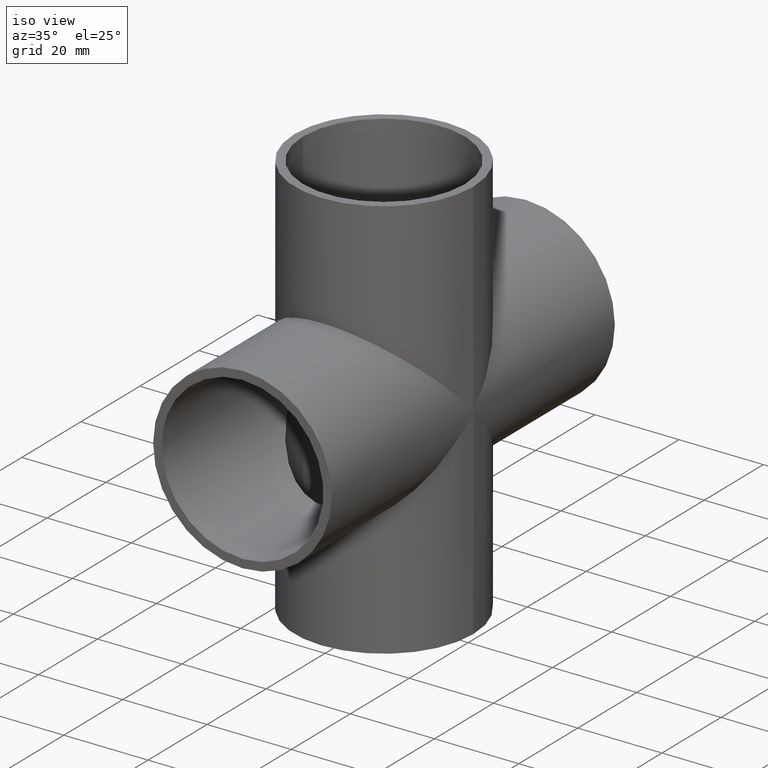
[diagram: clean part render]
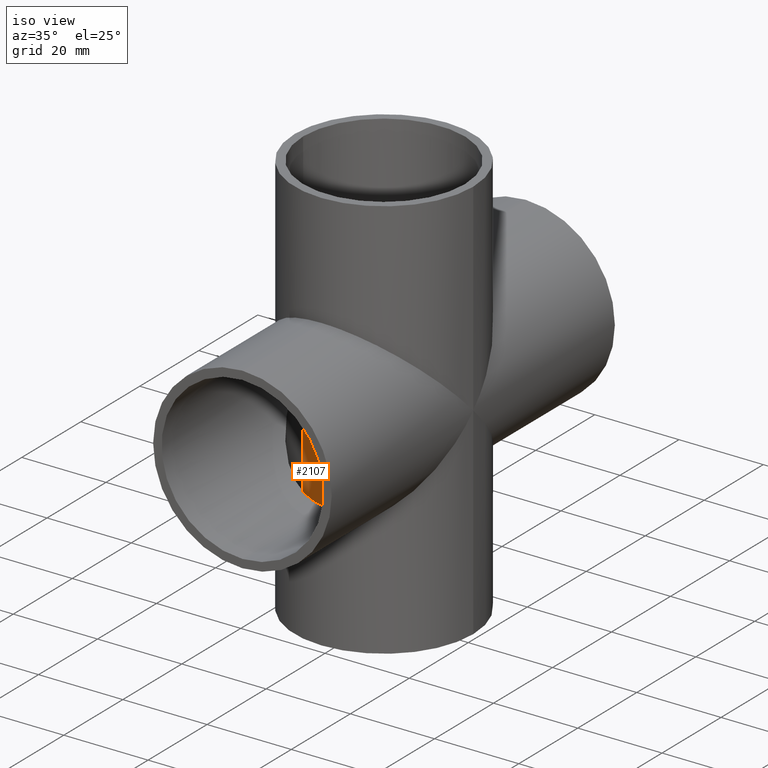
[diagram: same view with one face highlighted and labeled with its STEP entity id]
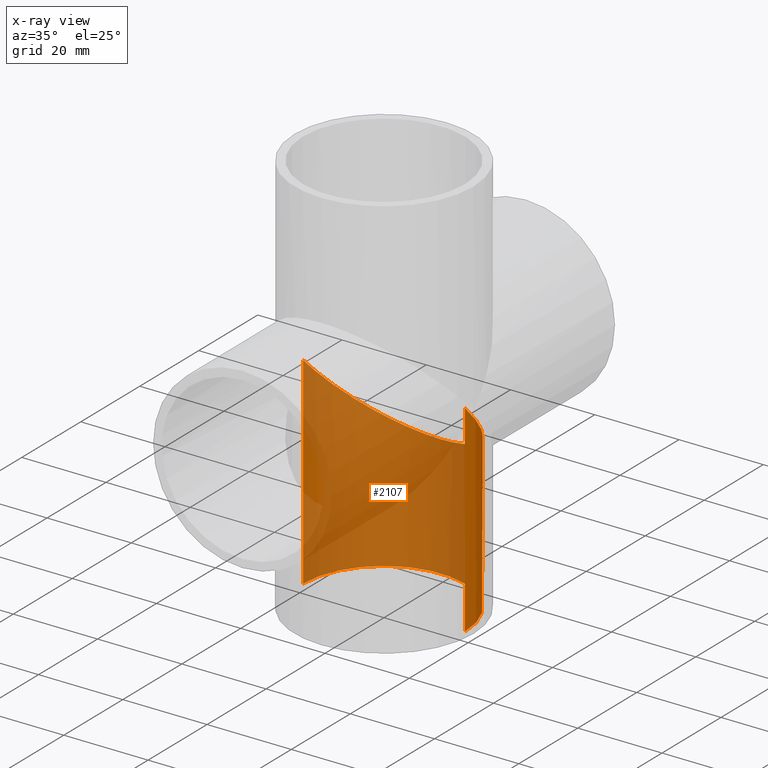
[diagram: x-ray of the same camera — body ghosted, the highlighted face saturated]
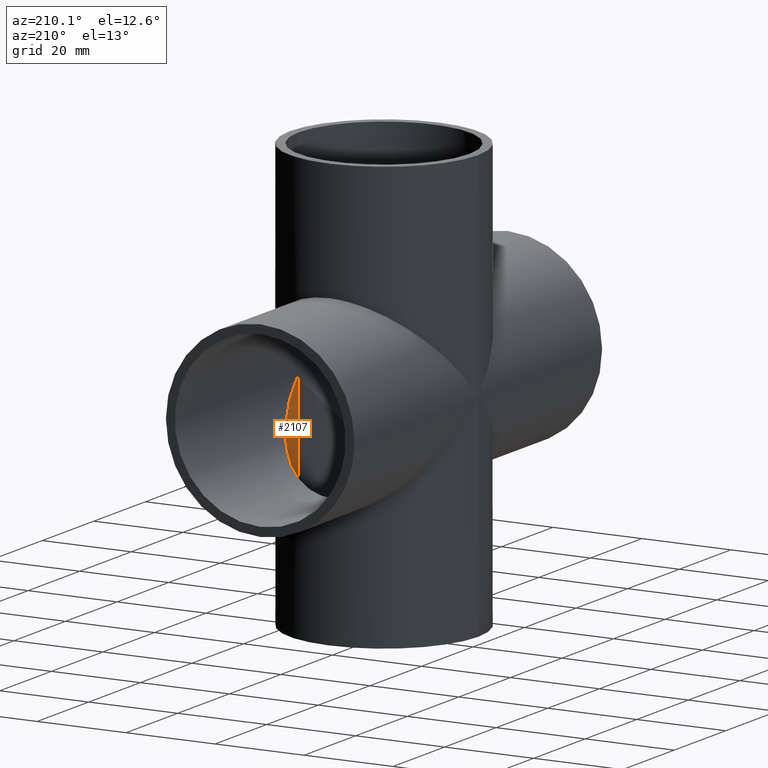
[diagram: same view with one face highlighted and labeled with its STEP entity id]
A machine part, iso view. The second image highlights one B-rep face of the part: STEP entity #2107.
The next image is the same camera in x-ray: the body ghosted, the highlighted face saturated — about 85% of this face is hidden behind the body in this view.
A second angle (auxiliary view) of the same face is appended — the face is thin or edge-on in the first view.
In plain terms, the highlighted cylindrical surface (partial cylindrical patch) has radius 19.2 mm, axis along (-0, -0, -1).
Its self-contained STEP definition (entity closure, byte-faithful):
#6 = CARTESIAN_POINT ( 'NONE',  ( 19.20000000000000300, 11.24709960243657200, -11.24709960243657200 ) ) ;
#107 = CARTESIAN_POINT ( 'NONE',  ( 11.24709960243657400, 19.19999999999999900, -19.19999999999999900 ) ) ;
#154 = CARTESIAN_POINT ( 'NONE',  ( 0.0000000000000000000, 19.19999999999999900, -19.20000000000000300 ) ) ;
#709 = VERTEX_POINT ( 'NONE', #2003 ) ;
#773 = CARTESIAN_POINT ( 'NONE',  ( 19.20000000000000300, 0.0000000000000000000, -1.175660927181459000E-015 ) ) ;
#863 = CIRCLE ( 'NONE', #7224, 19.20000000000000300 ) ;
#1459 = CARTESIAN_POINT ( 'NONE',  ( 19.20000000000000300, 0.0000000000000000000, -1.175660927181459000E-015 ) ) ;
#1583 = EDGE_CURVE ( 'NONE', #1600, #9793, #10239, .T. ) ;
#1600 = VERTEX_POINT ( 'NONE', #1459 ) ;
#1647 = FACE_OUTER_BOUND ( 'NONE', #1803, .T. ) ;
#1798 = ORIENTED_EDGE ( 'NONE', *, *, #7503, .F. ) ;
#1803 = EDGE_LOOP ( 'NONE', ( #1798, #5623, #7555, #7032, #4617 ) ) ;
#1994 = CARTESIAN_POINT ( 'NONE',  ( 0.0000000000000000000, 19.19999999999999900, -19.20000000000000300 ) ) ;
#2003 = CARTESIAN_POINT ( 'NONE',  ( 19.20000000000000300, 2.351321854362918100E-015, -48.00000000000000000 ) ) ;
#2107 = ADVANCED_FACE ( 'NONE', ( #1647 ), #5715, .F. ) ;
#2281 = LINE ( 'NONE', #10640, #10451 ) ;
#2715 = CARTESIAN_POINT ( 'NONE',  ( 0.0000000000000000000, 0.0000000000000000000, 48.00000000000000000 ) ) ;
#2739 = DIRECTION ( 'NONE',  ( -1.000000000000000000, 0.0000000000000000000, 0.0000000000000000000 ) ) ;
#3196 = DIRECTION ( 'NONE',  ( -0.0000000000000000000, -0.0000000000000000000, -1.000000000000000000 ) ) ;
#3444 = VERTEX_POINT ( 'NONE', #7743 ) ;
#3582 = DIRECTION ( 'NONE',  ( 0.0000000000000000000, 0.0000000000000000000, 1.000000000000000000 ) ) ;
#3612 = CARTESIAN_POINT ( 'NONE',  ( -11.24709960243657400, 19.19999999999999900, -19.19999999999999900 ) ) ;
#3644 = CARTESIAN_POINT ( 'NONE',  ( -19.20000000000000300, 11.24709960243657200, -11.24709960243657200 ) ) ;
#4092 = CARTESIAN_POINT ( 'NONE',  ( 0.0000000000000000000, 19.19999999999999900, -19.20000000000000300 ) ) ;
#4617 = ORIENTED_EDGE ( 'NONE', *, *, #4823, .F. ) ;
#4823 = EDGE_CURVE ( 'NONE', #709, #3444, #863, .T. ) ;
#5109 = VERTEX_POINT ( 'NONE', #8117 ) ;
#5623 = ORIENTED_EDGE ( 'NONE', *, *, #1583, .T. ) ;
#5699 = EDGE_CURVE ( 'NONE', #5109, #3444, #8574, .T. ) ;
#5715 = CYLINDRICAL_SURFACE ( 'NONE', #7535, 19.20000000000000300 ) ;
#6201 =( BOUNDED_CURVE ( )  B_SPLINE_CURVE ( 3, ( #1994, #3612, #3644, #9363 ),
 .UNSPECIFIED., .F., .F. ) 
 B_SPLINE_CURVE_WITH_KNOTS ( ( 4, 4 ),
 ( 0.0000000000000000000, 1.570796326794896800 ),
 .UNSPECIFIED. ) 
 CURVE ( )  GEOMETRIC_REPRESENTATION_ITEM ( )  RATIONAL_B_SPLINE_CURVE ( ( 1.000000000000000000, 0.8047378541243649400, 0.8047378541243649400, 1.000000000000000000 ) ) 
 REPRESENTATION_ITEM ( '' )  );
#6632 = CARTESIAN_POINT ( 'NONE',  ( -19.20000000000000300, 0.0000000000000000000, 48.00000000000000000 ) ) ;
#6783 = DIRECTION ( 'NONE',  ( -0.0000000000000000000, -0.0000000000000000000, -1.000000000000000000 ) ) ;
#7032 = ORIENTED_EDGE ( 'NONE', *, *, #5699, .T. ) ;
#7224 = AXIS2_PLACEMENT_3D ( 'NONE', #8488, #3582, #9290 ) ;
#7503 = EDGE_CURVE ( 'NONE', #1600, #709, #2281, .T. ) ;
#7535 = AXIS2_PLACEMENT_3D ( 'NONE', #2715, #3196, #2739 ) ;
#7555 = ORIENTED_EDGE ( 'NONE', *, *, #10001, .T. ) ;
#7743 = CARTESIAN_POINT ( 'NONE',  ( -19.20000000000000300, 0.0000000000000000000, -48.00000000000000000 ) ) ;
#8117 = CARTESIAN_POINT ( 'NONE',  ( -19.20000000000000300, 0.0000000000000000000, 0.0000000000000000000 ) ) ;
#8237 = DIRECTION ( 'NONE',  ( -0.0000000000000000000, -0.0000000000000000000, -1.000000000000000000 ) ) ;
#8488 = CARTESIAN_POINT ( 'NONE',  ( 0.0000000000000000000, 0.0000000000000000000, -48.00000000000000000 ) ) ;
#8574 = LINE ( 'NONE', #6632, #9084 ) ;
#9084 = VECTOR ( 'NONE', #6783, 1000.000000000000000 ) ;
#9290 = DIRECTION ( 'NONE',  ( 1.000000000000000000, 0.0000000000000000000, 0.0000000000000000000 ) ) ;
#9363 = CARTESIAN_POINT ( 'NONE',  ( -19.20000000000000300, 0.0000000000000000000, 0.0000000000000000000 ) ) ;
#9793 = VERTEX_POINT ( 'NONE', #4092 ) ;
#10001 = EDGE_CURVE ( 'NONE', #9793, #5109, #6201, .T. ) ;
#10239 =( BOUNDED_CURVE ( )  B_SPLINE_CURVE ( 3, ( #773, #6, #107, #154 ),
 .UNSPECIFIED., .F., .F. ) 
 B_SPLINE_CURVE_WITH_KNOTS ( ( 4, 4 ),
 ( 4.712388980384689700, 6.283185307179586200 ),
 .UNSPECIFIED. ) 
 CURVE ( )  GEOMETRIC_REPRESENTATION_ITEM ( )  RATIONAL_B_SPLINE_CURVE ( ( 1.000000000000000000, 0.8047378541243649400, 0.8047378541243649400, 1.000000000000000000 ) ) 
 REPRESENTATION_ITEM ( '' )  );
#10451 = VECTOR ( 'NONE', #8237, 1000.000000000000000 ) ;
#10640 = CARTESIAN_POINT ( 'NONE',  ( 19.20000000000000300, 2.351321854362918100E-015, 48.00000000000000000 ) ) ;